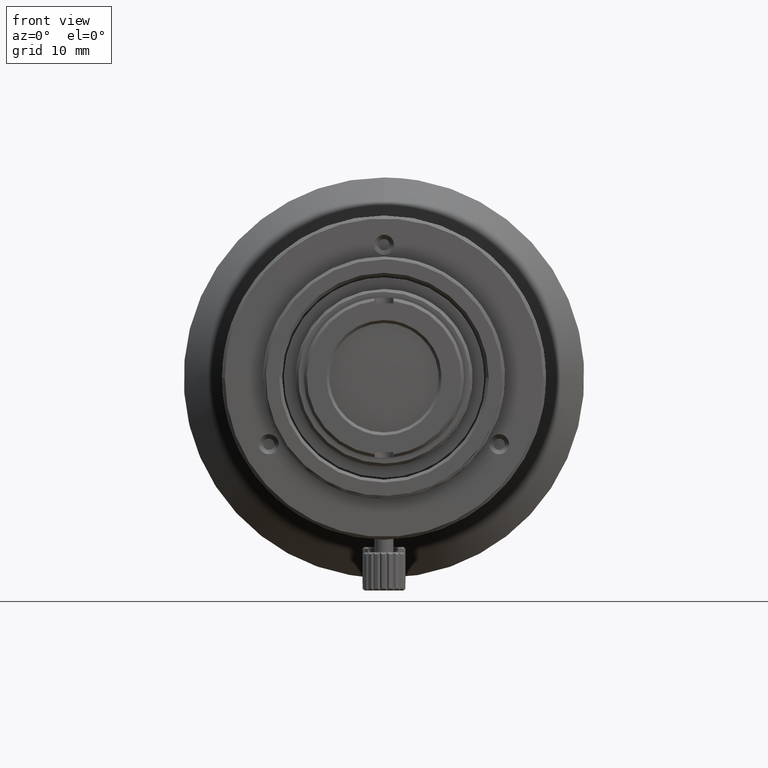
[diagram: clean part render]
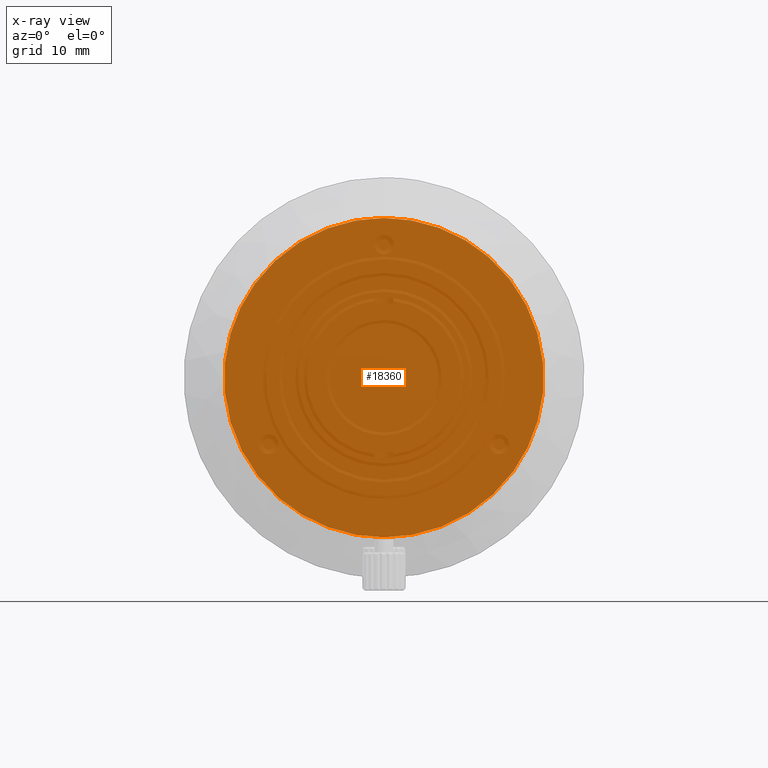
[diagram: x-ray — body ghosted, one internal face saturated and labeled with its STEP entity id]
A machine part, front view, then the same camera in x-ray: the body is ghosted and one INTERNAL B-rep face — a face not visible from any outside direction — is saturated and labeled: STEP entity #18360.
In plain terms, the highlighted planar face has unit normal (0, 1, 0).
Its self-contained STEP definition (entity closure, byte-faithful):
#530 = CARTESIAN_POINT ( 'NONE',  ( 8.927781734814915993, 19.92094953858000395, 14.17260133366302099 ) ) ;
#690 = CARTESIAN_POINT ( 'NONE',  ( -14.17260133366228025, 19.92094953858000039, 8.927781734814741910 ) ) ;
#999 = CARTESIAN_POINT ( 'NONE',  ( 5.944146704804333048, 19.92094953858000039, 15.66007287632084299 ) ) ;
#1155 = CARTESIAN_POINT ( 'NONE',  ( -12.25275560146240394, 19.92094953858000039, -11.43534784624777600 ) ) ;
#1469 = CARTESIAN_POINT ( 'NONE',  ( 16.50987730808914122, 19.92094953858000039, -2.827321204022372303 ) ) ;
#1627 = CARTESIAN_POINT ( 'NONE',  ( -16.61311660600863149, 19.92094953858000395, 2.164296305689678235 ) ) ;
#1929 = CARTESIAN_POINT ( 'NONE',  ( 16.03584559011801502, 19.92094953858000039, 4.892274495743205165 ) ) ;
#2084 = CARTESIAN_POINT ( 'NONE',  ( -16.18541736045196089, 19.92094953858000395, 4.372068428938635343 ) ) ;
#2395 = CARTESIAN_POINT ( 'NONE',  ( 10.79404539030645438, 19.92094953857999684, -12.83124789241640507 ) ) ;
#2550 = CARTESIAN_POINT ( 'NONE',  ( -6.296940293309041259, 19.92094953858000395, 15.52135114236645919 ) ) ;
#2862 = CARTESIAN_POINT ( 'NONE',  ( 15.77386272139568568, 19.92094953858000039, 5.660672823869416170 ) ) ;
#3330 = CARTESIAN_POINT ( 'NONE',  ( -8.205133554287266562E-16, 19.92094953858000039, -16.75000000000000000 ) ) ;
#5710 = AXIS2_PLACEMENT_3D ( 'NONE', #9849, #62977, #60295 ) ;
#6677 = CARTESIAN_POINT ( 'NONE',  ( 8.324975531900530967, 19.92094953858000039, 14.53964602221146407 ) ) ;
#7140 = CARTESIAN_POINT ( 'NONE',  ( 9.047078478642600174, 19.92094953857999684, 14.09673307120958086 ) ) ;
#7611 = CARTESIAN_POINT ( 'NONE',  ( 13.44563490579073850, 19.92094953858000750, 9.996393082753375126 ) ) ;
#7764 = CARTESIAN_POINT ( 'NONE',  ( -15.36568066048064374, 19.92094953858000395, 6.691721621964019207 ) ) ;
#8231 = CARTESIAN_POINT ( 'NONE',  ( -15.54780086982628795, 19.92094953858000039, -6.231340735989217450 ) ) ;
#8544 = CARTESIAN_POINT ( 'NONE',  ( 15.74342430446991692, 19.92094953858000039, -5.721921291826513212 ) ) ;
#8700 = CARTESIAN_POINT ( 'NONE',  ( -12.66142006214219862, 19.92094953857998973, 11.02660455168949305 ) ) ;
#8732 = CARTESIAN_POINT ( 'NONE',  ( -1.277277832764038390, 19.92094953857999684, -16.71504561512220377 ) ) ;
#9002 = CARTESIAN_POINT ( 'NONE',  ( 15.62346131252951054, 19.92094953858000039, -6.039133610595038171 ) ) ;
#9160 = CARTESIAN_POINT ( 'NONE',  ( -16.03584559011698474, 19.92094953858000039, -4.892274495743205165 ) ) ;
#9457 = CARTESIAN_POINT ( 'NONE',  ( 16.47653978529071850, 19.92094953858000395, -3.014507051336355214 ) ) ;
#9607 = CARTESIAN_POINT ( 'NONE',  ( -16.46454020420155828, 19.92094953857999684, -3.079351608721312861 ) ) ;
#9849 = CARTESIAN_POINT ( 'NONE',  ( 5.151434834260999988E-13, 19.92094953858000039, 0.000000000000000000 ) ) ;
#9921 = CARTESIAN_POINT ( 'NONE',  ( 15.54780086982731646, 19.92094953858000039, 6.231340735989217450 ) ) ;
#10391 = CARTESIAN_POINT ( 'NONE',  ( 12.66142006214322890, 19.92094953857998973, -11.02660455168949305 ) ) ;
#10459 = CARTESIAN_POINT ( 'NONE',  ( -3.581866352975570322, 19.92094953858000395, -16.37156709197625304 ) ) ;
#11016 = CARTESIAN_POINT ( 'NONE',  ( -9.585200401719680130, 19.92094953858000395, 13.73769824763703973 ) ) ;
#12877 = VERTEX_POINT ( 'NONE', #75827 ) ;
#13226 = CARTESIAN_POINT ( 'NONE',  ( -9.996393082743503911, 19.92094953858000039, 13.44563490579591303 ) ) ;
#13302 = CARTESIAN_POINT ( 'NONE',  ( 5.721921291826673084, 19.92094953858000039, 15.74342430446939645 ) ) ;
#14211 = CARTESIAN_POINT ( 'NONE',  ( 6.132702932861767486, 19.92094953858000395, 15.58697112919034033 ) ) ;
#14675 = CARTESIAN_POINT ( 'NONE',  ( 6.039133610595440516, 19.92094953858000039, 15.62346131252899895 ) ) ;
#14834 = CARTESIAN_POINT ( 'NONE',  ( -6.039133610594409340, 19.92094953858000039, -15.62346131252899895 ) ) ;
#15148 = CARTESIAN_POINT ( 'NONE',  ( 2.984898809603167003, 19.92094953858000039, 16.48192535555960703 ) ) ;
#15304 = CARTESIAN_POINT ( 'NONE',  ( -16.44514795300273846, 19.92094953857999684, -3.181317915448436118 ) ) ;
#15613 = CARTESIAN_POINT ( 'NONE',  ( 16.71507398860785187, 19.92094953858000395, -1.277124478970549371 ) ) ;
#15769 = CARTESIAN_POINT ( 'NONE',  ( -13.38713708149895965, 19.92094953857999329, 10.13334117065400797 ) ) ;
#16077 = CARTESIAN_POINT ( 'NONE',  ( 6.395184835782840693, 19.92094953858000395, -15.48137999668448295 ) ) ;
#16232 = CARTESIAN_POINT ( 'NONE',  ( -16.27520200923354565, 19.92094953858000395, -3.976510803766475366 ) ) ;
#16265 = CARTESIAN_POINT ( 'NONE',  ( -2.984898809602136716, 19.92094953858000039, -16.48192535555960703 ) ) ;
#16536 = CARTESIAN_POINT ( 'NONE',  ( 3.513804213820450162, 19.92094953857999329, -16.37830765352763862 ) ) ;
#16690 = CARTESIAN_POINT ( 'NONE',  ( -15.74342430446889018, 19.92094953858000039, 5.721921291826513212 ) ) ;
#16998 = CARTESIAN_POINT ( 'NONE',  ( 11.43534784624116618, 19.92094953858000395, -12.25275560146725695 ) ) ;
#17464 = CARTESIAN_POINT ( 'NONE',  ( 9.224964794872851925, 19.92094953858000039, -13.98096749980569520 ) ) ;
#18360 = ADVANCED_FACE ( 'NONE', ( #32484 ), #27150, .T. ) ;
#18468 = CARTESIAN_POINT ( 'NONE',  ( -4.372068428937305740, 19.92094953858000750, -16.18541736045249024 ) ) ;
#20296 = CARTESIAN_POINT ( 'NONE',  ( -3.114642599746332952, 19.92094953858000395, 16.45790440632318763 ) ) ;
#20371 = CARTESIAN_POINT ( 'NONE',  ( 14.75586210014234645, 19.92094953858000039, 7.961921286798505193 ) ) ;
#21910 = CARTESIAN_POINT ( 'NONE',  ( -8.748224765803714220, 19.92094953858000395, -14.28521373149941631 ) ) ;
#22378 = CARTESIAN_POINT ( 'NONE',  ( -15.48137999668398201, 19.92094953858000395, -6.395184835782119492 ) ) ;
#22690 = CARTESIAN_POINT ( 'NONE',  ( 7.075311751217935985, 19.92094953858000039, -15.18705080682992836 ) ) ;
#22843 = CARTESIAN_POINT ( 'NONE',  ( -14.09673307120895380, 19.92094953858000395, 9.047078478642269772 ) ) ;
#22855 = EDGE_LOOP ( 'NONE', ( #25145, #54356 ) ) ;
#23157 = CARTESIAN_POINT ( 'NONE',  ( 15.59885593152232452, 19.92094953858000395, -6.102402090697141013 ) ) ;
#23314 = CARTESIAN_POINT ( 'NONE',  ( -13.94019080603564120, 19.92094953857999684, -9.286485844725650196 ) ) ;
#23615 = CARTESIAN_POINT ( 'NONE',  ( 15.38603810865363464, 19.92094953858000039, 6.623338546998268406 ) ) ;
#23768 = CARTESIAN_POINT ( 'NONE',  ( -15.90182494463624963, 19.92094953858000395, 5.275113268011105028 ) ) ;
#24077 = CARTESIAN_POINT ( 'NONE',  ( 3.079357087485240285, 19.92094953858000039, -16.46453919016465761 ) ) ;
#24541 = CARTESIAN_POINT ( 'NONE',  ( 15.36568066048167935, 19.92094953858000395, -6.691721621964019207 ) ) ;
#25145 = ORIENTED_EDGE ( 'NONE', *, *, #74367, .T. ) ;
#25560 = CARTESIAN_POINT ( 'NONE',  ( -5.721921291825641909, 19.92094953858000039, -15.74342430446939645 ) ) ;
#25645 = CARTESIAN_POINT ( 'NONE',  ( -3.079357087484209998, 19.92094953858000039, 16.46453919016465761 ) ) ;
#27150 = PLANE ( 'NONE',  #5710 ) ;
#27909 = CARTESIAN_POINT ( 'NONE',  ( 2.164411321035704550, 19.92094953858000395, 16.61309532589528715 ) ) ;
#28990 = CARTESIAN_POINT ( 'NONE',  ( -10.13334117063734219, 19.92094953857999684, -13.38713708151003701 ) ) ;
#29464 = CARTESIAN_POINT ( 'NONE',  ( -8.927781734813883929, 19.92094953858000395, -14.17260133366302099 ) ) ;
#29768 = CARTESIAN_POINT ( 'NONE',  ( 14.17260133366331232, 19.92094953858000039, -8.927781734814741910 ) ) ;
#29927 = CARTESIAN_POINT ( 'NONE',  ( -13.44563490578970821, 19.92094953858000750, -9.996393082753375126 ) ) ;
#30233 = CARTESIAN_POINT ( 'NONE',  ( 15.66007287632136347, 19.92094953858000750, -5.944146704804008863 ) ) ;
#30389 = CARTESIAN_POINT ( 'NONE',  ( -15.52135114236594049, 19.92094953858000039, -6.296940293309434722 ) ) ;
#30691 = CARTESIAN_POINT ( 'NONE',  ( 16.42571733435846326, 19.92094953858000395, 3.281244732858528579 ) ) ;
#30849 = CARTESIAN_POINT ( 'NONE',  ( -16.49321660403004586, 19.92094953858000039, 2.921870905805135976 ) ) ;
#31156 = CARTESIAN_POINT ( 'NONE',  ( 3.114642599747363239, 19.92094953858000395, -16.45790440632318763 ) ) ;
#31306 = CARTESIAN_POINT ( 'NONE',  ( -3.976510803764579993, 19.92094953858000039, 16.27520200923436988 ) ) ;
#31621 = CARTESIAN_POINT ( 'NONE',  ( 3.976510803765611168, 19.92094953858000039, -16.27520200923436988 ) ) ;
#31773 = CARTESIAN_POINT ( 'NONE',  ( -7.961921286798880004, 19.92094953858000750, 14.75586210014181709 ) ) ;
#32148 = CARTESIAN_POINT ( 'NONE',  ( -2.827357146317327263, 19.92094953858000395, -16.50987065805304965 ) ) ;
#32241 = CARTESIAN_POINT ( 'NONE',  ( -1.024690045333466415, 19.92094953858000039, 16.75000000000000000 ) ) ;
#32484 = FACE_OUTER_BOUND ( 'NONE', #22855, .T. ) ;
#33493 = CARTESIAN_POINT ( 'NONE',  ( 1.024690045334496036, 19.92094953858000039, -16.75000000000000000 ) ) ;
#34464 = CARTESIAN_POINT ( 'NONE',  ( -9.224964794871821638, 19.92094953858000039, 13.98096749980569520 ) ) ;
#34984 = CARTESIAN_POINT ( 'NONE',  ( 1.277277832765069121, 19.92094953857999684, 16.71504561512220377 ) ) ;
#36531 = CARTESIAN_POINT ( 'NONE',  ( -14.53964602221031654, 19.92094953857999684, 8.324975531900969727 ) ) ;
#36837 = CARTESIAN_POINT ( 'NONE',  ( 4.372068428938336027, 19.92094953858000750, 16.18541736045249024 ) ) ;
#36999 = CARTESIAN_POINT ( 'NONE',  ( -16.48192735056975877, 19.92094953857999684, 2.984888026914008119 ) ) ;
#37306 = CARTESIAN_POINT ( 'NONE',  ( 15.01519072001034871, 19.92094953857999684, -7.461345172570964301 ) ) ;
#37468 = CARTESIAN_POINT ( 'NONE',  ( -13.73769824763319214, 19.92094953857998973, -9.585200401725648689 ) ) ;
#37767 = CARTESIAN_POINT ( 'NONE',  ( 16.37156709197675752, 19.92094953857999684, -3.581866352976549983 ) ) ;
#37925 = CARTESIAN_POINT ( 'NONE',  ( -9.105289756610824625, 19.92094953857999684, -14.05920842112506008 ) ) ;
#38226 = CARTESIAN_POINT ( 'NONE',  ( 16.46454020420258146, 19.92094953857999684, 3.079351608721312861 ) ) ;
#38377 = CARTESIAN_POINT ( 'NONE',  ( -15.59885593152129424, 19.92094953858000395, 6.102402090697141013 ) ) ;
#38685 = CARTESIAN_POINT ( 'NONE',  ( 16.18541736045298407, 19.92094953858000395, -4.372068428938635343 ) ) ;
#38840 = CARTESIAN_POINT ( 'NONE',  ( -7.075311751216907474, 19.92094953858000039, 15.18705080682992836 ) ) ;
#39115 = CARTESIAN_POINT ( 'NONE',  ( -2.934324909952350891E-10, 19.92094953858000039, 16.75000000000000000 ) ) ;
#39156 = CARTESIAN_POINT ( 'NONE',  ( 15.90182494463727636, 19.92094953858000395, -5.275113268011105028 ) ) ;
#40252 = CARTESIAN_POINT ( 'NONE',  ( -6.623338546998144061, 19.92094953858000395, 15.38603810865311772 ) ) ;
#41984 = CARTESIAN_POINT ( 'NONE',  ( -9.406324996871719080, 19.92094953858000395, 13.85962607310138850 ) ) ;
#42060 = CARTESIAN_POINT ( 'NONE',  ( 6.102402090697598425, 19.92094953858000395, 15.59885593152181293 ) ) ;
#42976 = CARTESIAN_POINT ( 'NONE',  ( 13.85962607309990524, 19.92094953858000395, 9.406324996875513378 ) ) ;
#43443 = CARTESIAN_POINT ( 'NONE',  ( 11.02660455169868747, 19.92094953858000039, 12.66142006212845139 ) ) ;
#43603 = CARTESIAN_POINT ( 'NONE',  ( -6.132702932860737199, 19.92094953858000395, -15.58697112919034033 ) ) ;
#43910 = CARTESIAN_POINT ( 'NONE',  ( 6.691721621963797162, 19.92094953858000039, 15.36568066048163850 ) ) ;
#44066 = CARTESIAN_POINT ( 'NONE',  ( -11.02660455169765719, 19.92094953858000039, -12.66142006212845139 ) ) ;
#44379 = CARTESIAN_POINT ( 'NONE',  ( 14.09673307120998587, 19.92094953858000395, -9.047078478642269772 ) ) ;
#44542 = CARTESIAN_POINT ( 'NONE',  ( -15.62346131252848025, 19.92094953858000039, 6.039133610595038171 ) ) ;
#44845 = CARTESIAN_POINT ( 'NONE',  ( 9.585200401720708641, 19.92094953858000395, -13.73769824763703973 ) ) ;
#45007 = CARTESIAN_POINT ( 'NONE',  ( -8.324975531899498904, 19.92094953858000039, -14.53964602221146407 ) ) ;
#45041 = CARTESIAN_POINT ( 'NONE',  ( -3.014507051335872045, 19.92094953858000039, -16.47653978529020691 ) ) ;
#45301 = CARTESIAN_POINT ( 'NONE',  ( 3.281244732858615176, 19.92094953858000395, -16.42571733435805115 ) ) ;
#45454 = CARTESIAN_POINT ( 'NONE',  ( -15.66007287632034028, 19.92094953858000750, 5.944146704804008863 ) ) ;
#45761 = CARTESIAN_POINT ( 'NONE',  ( 16.37830765352797968, 19.92094953857999684, 3.513804213820740152 ) ) ;
#45918 = CARTESIAN_POINT ( 'NONE',  ( -10.79404539030542587, 19.92094953857999684, 12.83124789241640507 ) ) ;
#46234 = CARTESIAN_POINT ( 'NONE',  ( 15.52135114236697433, 19.92094953858000039, 6.296940293309434722 ) ) ;
#46386 = CARTESIAN_POINT ( 'NONE',  ( -2.040650421301259509, 19.92094953858000395, 16.65678830699254931 ) ) ;
#46860 = CARTESIAN_POINT ( 'NONE',  ( -5.660672823867858305, 19.92094953858000039, 15.77386272139539791 ) ) ;
#49140 = CARTESIAN_POINT ( 'NONE',  ( 15.18705080683047015, 19.92094953858000039, 7.075311751216755596 ) ) ;
#49594 = CARTESIAN_POINT ( 'NONE',  ( 9.105289756611854912, 19.92094953857999684, 14.05920842112506008 ) ) ;
#50047 = CARTESIAN_POINT ( 'NONE',  ( 2.921891957721571842, 19.92094953858000395, 16.49321270900973246 ) ) ;
#50668 = CARTESIAN_POINT ( 'NONE',  ( -15.38603810865260435, 19.92094953858000039, -6.623338546998268406 ) ) ;
#51135 = CARTESIAN_POINT ( 'NONE',  ( -9.047078478641571664, 19.92094953857999684, -14.09673307120958086 ) ) ;
#51438 = CARTESIAN_POINT ( 'NONE',  ( 9.996393082744532421, 19.92094953858000039, -13.44563490579591303 ) ) ;
#51595 = CARTESIAN_POINT ( 'NONE',  ( -14.05920842112520219, 19.92094953858000395, 9.105289756610336127 ) ) ;
#51904 = CARTESIAN_POINT ( 'NONE',  ( 15.58697112919088568, 19.92094953858000395, -6.132702932861207934 ) ) ;
#52064 = CARTESIAN_POINT ( 'NONE',  ( -14.32933331776561836, 19.92094953858000039, -8.692151963831042494 ) ) ;
#52096 = CARTESIAN_POINT ( 'NONE',  ( -2.606604184644094158, 19.92094953858000039, -16.54682763789780608 ) ) ;
#52364 = CARTESIAN_POINT ( 'NONE',  ( 9.286485844724447603, 19.92094953858000750, -13.94019080603720973 ) ) ;
#52524 = CARTESIAN_POINT ( 'NONE',  ( -6.691721621962766875, 19.92094953858000039, -15.36568066048163850 ) ) ;
#52825 = CARTESIAN_POINT ( 'NONE',  ( 2.040650421302291129, 19.92094953858000395, -16.65678830699254931 ) ) ;
#53289 = CARTESIAN_POINT ( 'NONE',  ( 15.48137999668500875, 19.92094953858000395, 6.395184835782119492 ) ) ;
#53448 = CARTESIAN_POINT ( 'NONE',  ( -3.181317915447668732, 19.92094953858000039, 16.44514795300330690 ) ) ;
#54356 = ORIENTED_EDGE ( 'NONE', *, *, #60435, .T. ) ;
#54389 = CARTESIAN_POINT ( 'NONE',  ( -6.231340735988765367, 19.92094953858000039, 15.54780086982680665 ) ) ;
#56198 = CARTESIAN_POINT ( 'NONE',  ( 14.32933331776664687, 19.92094953858000039, 8.692151963831042494 ) ) ;
#57740 = CARTESIAN_POINT ( 'NONE',  ( -7.461345172569176398, 19.92094953858000395, -15.01519072001067734 ) ) ;
#58052 = CARTESIAN_POINT ( 'NONE',  ( 0.5121672524443013907, 19.92094953858000039, 16.75000000000000355 ) ) ;
#58211 = CARTESIAN_POINT ( 'NONE',  ( -12.83124789240830310, 19.92094953858000039, -10.79404539031841459 ) ) ;
#58523 = CARTESIAN_POINT ( 'NONE',  ( 16.74996757316036167, 19.92094953858000039, 1.024159243408693909 ) ) ;
#58683 = CARTESIAN_POINT ( 'NONE',  ( -14.75586210014132149, 19.92094953858000039, -7.961921286798505193 ) ) ;
#58986 = CARTESIAN_POINT ( 'NONE',  ( 16.61311660600966178, 19.92094953858000395, -2.164296305689678235 ) ) ;
#59142 = CARTESIAN_POINT ( 'NONE',  ( -16.54684005129702840, 19.92094953858000395, 2.606537092359724195 ) ) ;
#59175 = CARTESIAN_POINT ( 'NONE',  ( -8.205133554287266562E-16, 19.92094953858000039, -16.75000000000000000 ) ) ;
#59444 = CARTESIAN_POINT ( 'NONE',  ( 14.28521373149956908, 19.92094953858000750, -8.748224765804792469 ) ) ;
#59602 = CARTESIAN_POINT ( 'NONE',  ( -16.45790440632264406, 19.92094953858000395, -3.114642599746976437 ) ) ;
#59903 = CARTESIAN_POINT ( 'NONE',  ( 8.692151963832069228, 19.92094953858000395, -14.32933331776611752 ) ) ;
#60060 = CARTESIAN_POINT ( 'NONE',  ( -2.934324909952350891E-10, 19.92094953858000039, 16.75000000000000000 ) ) ;
#60295 = DIRECTION ( 'NONE',  ( 0.000000000000000000, -0.000000000000000000, 1.000000000000000000 ) ) ;
#60370 = CARTESIAN_POINT ( 'NONE',  ( 16.54684005129806224, 19.92094953858000395, -2.606537092359724195 ) ) ;
#60435 = EDGE_CURVE ( 'NONE', #12877, #85484, #66034, .T. ) ;
#60528 = CARTESIAN_POINT ( 'NONE',  ( -6.395184835781810406, 19.92094953858000395, 15.48137999668448295 ) ) ;
#61001 = CARTESIAN_POINT ( 'NONE',  ( -3.513804213819419875, 19.92094953857999329, 16.37830765352763862 ) ) ;
#61382 = CARTESIAN_POINT ( 'NONE',  ( -0.5121672524432708817, 19.92094953858000039, -16.75000000000000355 ) ) ;
#61470 = CARTESIAN_POINT ( 'NONE',  ( -9.286485844723417316, 19.92094953858000750, 13.94019080603720973 ) ) ;
#62977 = DIRECTION ( 'NONE',  ( 0.000000000000000000, 1.000000000000000000, 0.000000000000000000 ) ) ;
#64192 = CARTESIAN_POINT ( 'NONE',  ( 12.83124789240933872, 19.92094953858000039, 10.79404539031841459 ) ) ;
#65121 = CARTESIAN_POINT ( 'NONE',  ( 13.94019080603666794, 19.92094953857999684, 9.286485844725650196 ) ) ;
#65278 = CARTESIAN_POINT ( 'NONE',  ( -14.28521373149853346, 19.92094953858000750, 8.748224765804792469 ) ) ;
#65750 = CARTESIAN_POINT ( 'NONE',  ( -16.37156709197573434, 19.92094953857999684, 3.581866352976549983 ) ) ;
#66034 = B_SPLINE_CURVE_WITH_KNOTS ( 'NONE', 3,
 ( #59175, #61382, #8732, #87934, #52096, #32148, #83065, #16265, #45041, #10459, #18468, #90144, #25560, #87904, #14834, #80835, #43603, #52524, #57740, #45007, #21910, #29464, #51135, #37925, #28990, #44066, #1155, #58211, #29927, #37468, #86977, #23314, #86507, #52064, #58683, #67129, #50668, #22378, #30389, #8231, #87441, #79901, #9160, #16232, #66219, #73758, #15304, #59602, #9607, #79432, #81294, #88364, #72825, #1627, #59142, #66674, #30849, #36999, #80367, #65750, #2084, #23768, #16690, #45454, #44542, #38377, #74208, #7764, #72360, #36531, #65278, #690, #22843, #51595, #15769, #8700, #73294, #45918, #13226, #11016, #41984, #61470, #34464, #90234, #31773, #38840, #40252, #60528, #2550, #54389, #68056, #46860, #89757, #31306, #61001, #91965, #53448, #20296, #25645, #46386, #32241, #60060 ),
 .UNSPECIFIED., .F., .F.,
 ( 4, 1, 1, 1, 1, 2, 2, 1, 1, 1, 1, 2, 2, 1, 1, 1, 2, 2, 2, 1, 1, 1, 2, 2, 1, 1, 1, 1, 2, 2, 1, 1, 1, 1, 2, 2, 2, 1, 1, 1, 1, 2, 2, 1, 1, 1, 1, 2, 2, 1, 1, 1, 2, 2, 2, 1, 1, 1, 2, 2, 1, 1, 1, 1, 2, 2, 1, 1, 1, 1, 2, 2, 4 ),
 ( 0.000000000000000000, 0.03124999999999902162, 0.04687499999999854283, 0.05468749999999829303, 0.05859374999999817507, 0.06054687499999809874, 0.06249999999999802242, 0.09374999999999703015, 0.1093749999999965167, 0.1171874999999962530, 0.1210937499999961420, 0.1230468749999961003, 0.1249999999999960726, 0.1562499999999961420, 0.1718749999999961975, 0.1796874999999962530, 0.1835937499999962808, 0.1874999999999962808, 0.2499999999999967804, 0.2812499999999970579, 0.2968749999999972244, 0.3046874999999972800, 0.3085937499999973355, 0.3124999999999973910, 0.3437499999999973910, 0.3593749999999973355, 0.3671874999999973355, 0.3710937499999973355, 0.3730468749999973355, 0.3749999999999972800, 0.4062499999999965028, 0.4218749999999960587, 0.4296874999999958367, 0.4335937499999956701, 0.4355468749999956146, 0.4374999999999955591, 0.4999999999999938938, 0.5312499999999930056, 0.5468749999999926725, 0.5546874999999924505, 0.5585937499999922284, 0.5605468749999922284, 0.5624999999999921174, 0.5937499999999914513, 0.6093749999999910072, 0.6171874999999907851, 0.6210937499999906741, 0.6230468749999905631, 0.6249999999999905631, 0.6562499999999908962, 0.6718749999999910072, 0.6796874999999910072, 0.6835937499999911182, 0.6874999999999912292, 0.7499999999999924505, 0.7812499999999931166, 0.7968749999999933387, 0.8046874999999935607, 0.8085937499999936717, 0.8124999999999937828, 0.8437499999999945599, 0.8593749999999950040, 0.8671874999999951150, 0.8710937499999951150, 0.8730468749999952260, 0.8749999999999952260, 0.9062499999999962252, 0.9218749999999967804, 0.9296874999999970024, 0.9335937499999971134, 0.9355468749999971134, 0.9374999999999972244, 1.000000000000000000 ),
 .UNSPECIFIED. ) ;
#66060 = CARTESIAN_POINT ( 'NONE',  ( 9.406324996872751143, 19.92094953858000395, -13.85962607310138850 ) ) ;
#66219 = CARTESIAN_POINT ( 'NONE',  ( -16.37830765352695650, 19.92094953857999684, -3.513804213820740152 ) ) ;
#66514 = CARTESIAN_POINT ( 'NONE',  ( 6.197143482742696996, 19.92094953857999684, -15.56145975038322682 ) ) ;
#66674 = CARTESIAN_POINT ( 'NONE',  ( -16.50987730808811449, 19.92094953858000039, 2.827321204022372303 ) ) ;
#66973 = CARTESIAN_POINT ( 'NONE',  ( 16.27520200923457239, 19.92094953858000395, 3.976510803766475366 ) ) ;
#67129 = CARTESIAN_POINT ( 'NONE',  ( -15.18705080682943631, 19.92094953858000039, -7.075311751216755596 ) ) ;
#67435 = CARTESIAN_POINT ( 'NONE',  ( 4.892274495741871121, 19.92094953858000395, -16.03584559011791200 ) ) ;
#67898 = CARTESIAN_POINT ( 'NONE',  ( 16.49321660403107259, 19.92094953858000039, -2.921870905805135976 ) ) ;
#68056 = CARTESIAN_POINT ( 'NONE',  ( -6.197143482741666709, 19.92094953857999684, 15.56145975038322682 ) ) ;
#71259 = CARTESIAN_POINT ( 'NONE',  ( 2.606604184645124000, 19.92094953858000039, 16.54682763789780608 ) ) ;
#71723 = CARTESIAN_POINT ( 'NONE',  ( 8.748224765804746283, 19.92094953858000395, 14.28521373149941631 ) ) ;
#72204 = CARTESIAN_POINT ( 'NONE',  ( 12.25275560146343778, 19.92094953858000039, 11.43534784624777600 ) ) ;
#72360 = CARTESIAN_POINT ( 'NONE',  ( -15.01519072000931843, 19.92094953857999684, 7.461345172570964301 ) ) ;
#72669 = CARTESIAN_POINT ( 'NONE',  ( 13.98096749980621389, 19.92094953858000039, 9.224964794872395402 ) ) ;
#72825 = CARTESIAN_POINT ( 'NONE',  ( -16.71507398860682869, 19.92094953858000395, 1.277124478970549371 ) ) ;
#73135 = CARTESIAN_POINT ( 'NONE',  ( 15.56145975038375795, 19.92094953858000039, 6.197143482742117016 ) ) ;
#73294 = CARTESIAN_POINT ( 'NONE',  ( -11.43534784624013767, 19.92094953858000395, 12.25275560146725695 ) ) ;
#73597 = CARTESIAN_POINT ( 'NONE',  ( 6.231340735989796542, 19.92094953858000039, -15.54780086982680665 ) ) ;
#73758 = CARTESIAN_POINT ( 'NONE',  ( -16.42571733435744008, 19.92094953858000395, -3.281244732858528579 ) ) ;
#74053 = CARTESIAN_POINT ( 'NONE',  ( 3.181317915448699019, 19.92094953858000039, -16.44514795300330690 ) ) ;
#74208 = CARTESIAN_POINT ( 'NONE',  ( -15.58697112918985539, 19.92094953858000395, 6.132702932861207934 ) ) ;
#74367 = EDGE_CURVE ( 'NONE', #85484, #12877, #78927, .T. ) ;
#74519 = CARTESIAN_POINT ( 'NONE',  ( 6.296940293310071546, 19.92094953858000395, -15.52135114236645919 ) ) ;
#74985 = CARTESIAN_POINT ( 'NONE',  ( 16.75001621342059011, 19.92094953857999684, -0.5120796217043541709 ) ) ;
#75827 = CARTESIAN_POINT ( 'NONE',  ( -8.205133554287266562E-16, 19.92094953858000039, -16.75000000000000000 ) ) ;
#77887 = CARTESIAN_POINT ( 'NONE',  ( -2.934324909952350891E-10, 19.92094953858000039, 16.75000000000000000 ) ) ;
#78348 = CARTESIAN_POINT ( 'NONE',  ( 10.13334117063837247, 19.92094953857999684, 13.38713708151003701 ) ) ;
#78807 = CARTESIAN_POINT ( 'NONE',  ( 3.014507051336902332, 19.92094953858000039, 16.47653978529020691 ) ) ;
#78927 = B_SPLINE_CURVE_WITH_KNOTS ( 'NONE', 3,
 ( #77887, #58052, #34984, #27909, #71259, #84972, #50047, #15148, #78807, #79277, #36837, #85890, #13302, #999, #14675, #42060, #14211, #43910, #92950, #6677, #71723, #530, #7140, #49594, #78348, #43443, #72204, #64192, #7611, #86817, #42976, #65121, #72669, #56198, #20371, #49140, #23615, #53289, #46234, #9921, #73135, #2862, #1929, #66973, #45761, #30691, #89130, #80213, #38226, #87749, #58523, #74985, #15613, #58986, #60370, #1469, #67898, #81591, #9457, #37767, #38685, #39156, #8544, #30233, #9002, #23157, #51904, #24541, #37306, #82054, #59444, #29768, #44379, #87285, #88209, #10391, #16998, #2395, #51438, #44845, #66060, #52364, #17464, #59903, #80676, #22690, #88666, #16077, #74519, #73597, #66514, #81135, #67435, #31621, #16536, #45301, #74053, #31156, #24077, #52825, #33493, #3330 ),
 .UNSPECIFIED., .F., .F.,
 ( 4, 1, 1, 1, 1, 2, 2, 1, 1, 1, 1, 2, 2, 1, 1, 1, 2, 2, 2, 1, 1, 1, 2, 2, 1, 1, 1, 1, 2, 2, 1, 1, 1, 1, 2, 2, 2, 1, 1, 1, 1, 2, 2, 1, 1, 1, 1, 2, 2, 1, 1, 1, 2, 2, 2, 1, 1, 1, 2, 2, 1, 1, 1, 1, 2, 2, 1, 1, 1, 1, 2, 2, 4 ),
 ( 0.000000000000000000, 0.03124999999999902162, 0.04687499999999854283, 0.05468749999999829303, 0.05859374999999817507, 0.06054687499999809874, 0.06249999999999802242, 0.09374999999999703015, 0.1093749999999965167, 0.1171874999999962530, 0.1210937499999961420, 0.1230468749999961003, 0.1249999999999960726, 0.1562499999999961420, 0.1718749999999961975, 0.1796874999999962530, 0.1835937499999962808, 0.1874999999999962808, 0.2499999999999967804, 0.2812499999999970579, 0.2968749999999972244, 0.3046874999999972800, 0.3085937499999973355, 0.3124999999999973910, 0.3437499999999973910, 0.3593749999999973355, 0.3671874999999973355, 0.3710937499999973355, 0.3730468749999973355, 0.3749999999999972800, 0.4062499999999965028, 0.4218749999999960587, 0.4296874999999958367, 0.4335937499999956701, 0.4355468749999956146, 0.4374999999999955591, 0.4999999999999938938, 0.5312499999999930056, 0.5468749999999926725, 0.5546874999999924505, 0.5585937499999922284, 0.5605468749999922284, 0.5624999999999921174, 0.5937499999999914513, 0.6093749999999910072, 0.6171874999999907851, 0.6210937499999906741, 0.6230468749999905631, 0.6249999999999905631, 0.6562499999999908962, 0.6718749999999910072, 0.6796874999999910072, 0.6835937499999911182, 0.6874999999999912292, 0.7499999999999924505, 0.7812499999999931166, 0.7968749999999933387, 0.8046874999999935607, 0.8085937499999936717, 0.8124999999999937828, 0.8437499999999945599, 0.8593749999999950040, 0.8671874999999951150, 0.8710937499999951150, 0.8730468749999952260, 0.8749999999999952260, 0.9062499999999962252, 0.9218749999999967804, 0.9296874999999970024, 0.9335937499999971134, 0.9355468749999971134, 0.9374999999999972244, 1.000000000000000000 ),
 .UNSPECIFIED. ) ;
#79277 = CARTESIAN_POINT ( 'NONE',  ( 3.581866352976601053, 19.92094953858000395, 16.37156709197625304 ) ) ;
#79432 = CARTESIAN_POINT ( 'NONE',  ( -16.65675585779469259, 19.92094953858000395, -2.040825741730918796 ) ) ;
#79901 = CARTESIAN_POINT ( 'NONE',  ( -15.77386272139465895, 19.92094953858000039, -5.660672823869416170 ) ) ;
#80213 = CARTESIAN_POINT ( 'NONE',  ( 16.45790440632367080, 19.92094953858000395, 3.114642599746976437 ) ) ;
#80367 = CARTESIAN_POINT ( 'NONE',  ( -16.47653978528969176, 19.92094953858000395, 3.014507051336355214 ) ) ;
#80676 = CARTESIAN_POINT ( 'NONE',  ( 7.961921286799910291, 19.92094953858000750, -14.75586210014181709 ) ) ;
#80835 = CARTESIAN_POINT ( 'NONE',  ( -6.102402090696569026, 19.92094953858000395, -15.59885593152181293 ) ) ;
#81135 = CARTESIAN_POINT ( 'NONE',  ( 5.660672823868888592, 19.92094953858000039, -15.77386272139539791 ) ) ;
#81294 = CARTESIAN_POINT ( 'NONE',  ( -16.74996757315933493, 19.92094953858000039, -1.024159243408693909 ) ) ;
#81591 = CARTESIAN_POINT ( 'NONE',  ( 16.48192735057079261, 19.92094953857999684, -2.984888026914008119 ) ) ;
#82054 = CARTESIAN_POINT ( 'NONE',  ( 14.53964602221134861, 19.92094953857999684, -8.324975531900969727 ) ) ;
#83065 = CARTESIAN_POINT ( 'NONE',  ( -2.921891957720541555, 19.92094953858000395, -16.49321270900973246 ) ) ;
#84972 = CARTESIAN_POINT ( 'NONE',  ( 2.827357146318357550, 19.92094953858000395, 16.50987065805304965 ) ) ;
#85484 = VERTEX_POINT ( 'NONE', #39115 ) ;
#85890 = CARTESIAN_POINT ( 'NONE',  ( 5.275113268011007328, 19.92094953858000039, 15.90182494463676299 ) ) ;
#86507 = CARTESIAN_POINT ( 'NONE',  ( -13.98096749980518361, 19.92094953858000039, -9.224964794872395402 ) ) ;
#86817 = CARTESIAN_POINT ( 'NONE',  ( 13.73769824763422776, 19.92094953857998973, 9.585200401725648689 ) ) ;
#86977 = CARTESIAN_POINT ( 'NONE',  ( -13.85962607309886963, 19.92094953858000395, -9.406324996875513378 ) ) ;
#87285 = CARTESIAN_POINT ( 'NONE',  ( 14.05920842112623248, 19.92094953858000395, -9.105289756610336127 ) ) ;
#87441 = CARTESIAN_POINT ( 'NONE',  ( -15.56145975038272766, 19.92094953858000039, -6.197143482742117016 ) ) ;
#87749 = CARTESIAN_POINT ( 'NONE',  ( 16.65675585779571932, 19.92094953858000395, 2.040825741730918796 ) ) ;
#87904 = CARTESIAN_POINT ( 'NONE',  ( -5.944146704803301873, 19.92094953858000039, -15.66007287632084299 ) ) ;
#87934 = CARTESIAN_POINT ( 'NONE',  ( -2.164411321034674263, 19.92094953858000395, -16.61309532589528715 ) ) ;
#88209 = CARTESIAN_POINT ( 'NONE',  ( 13.38713708149998816, 19.92094953857999329, -10.13334117065400797 ) ) ;
#88364 = CARTESIAN_POINT ( 'NONE',  ( -16.75001621341956337, 19.92094953857999684, 0.5120796217043541709 ) ) ;
#88666 = CARTESIAN_POINT ( 'NONE',  ( 6.623338546999173460, 19.92094953858000395, -15.38603810865311772 ) ) ;
#89130 = CARTESIAN_POINT ( 'NONE',  ( 16.44514795300376164, 19.92094953857999684, 3.181317915448436118 ) ) ;
#89757 = CARTESIAN_POINT ( 'NONE',  ( -4.892274495740840834, 19.92094953858000395, 16.03584559011791200 ) ) ;
#90144 = CARTESIAN_POINT ( 'NONE',  ( -5.275113268009977929, 19.92094953858000039, -15.90182494463676299 ) ) ;
#90234 = CARTESIAN_POINT ( 'NONE',  ( -8.692151963831037165, 19.92094953858000395, 14.32933331776611752 ) ) ;
#91965 = CARTESIAN_POINT ( 'NONE',  ( -3.281244732857584445, 19.92094953858000395, 16.42571733435805115 ) ) ;
#92950 = CARTESIAN_POINT ( 'NONE',  ( 7.461345172570206685, 19.92094953858000395, 15.01519072001067734 ) ) ;